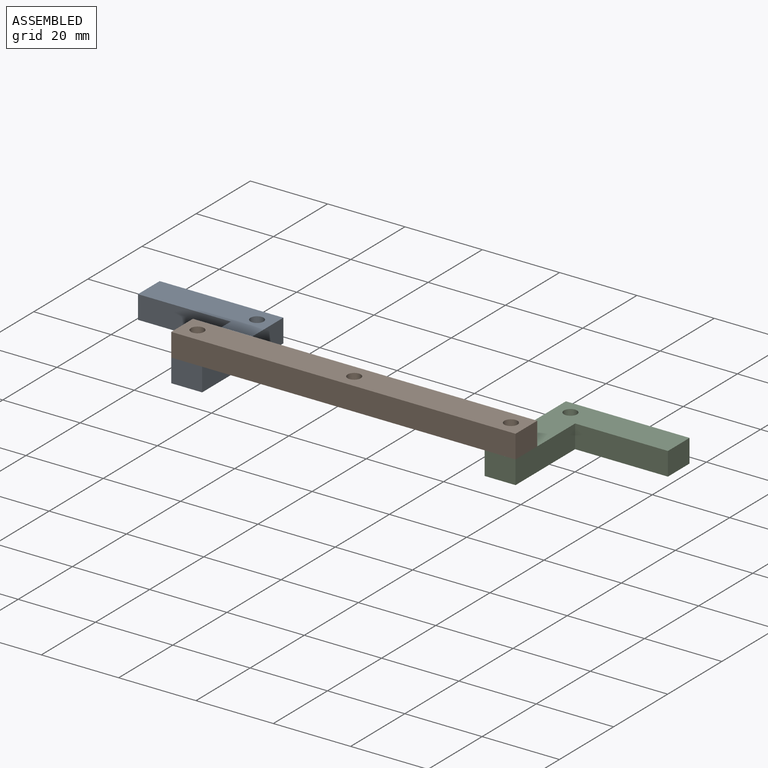
[diagram: assembled view]
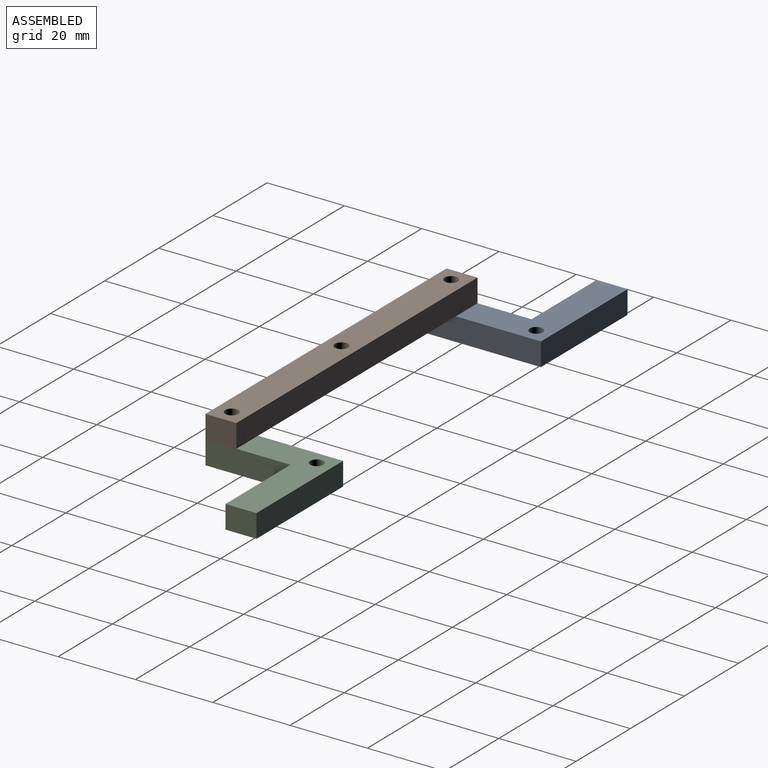
[diagram: assembled view, second angle]
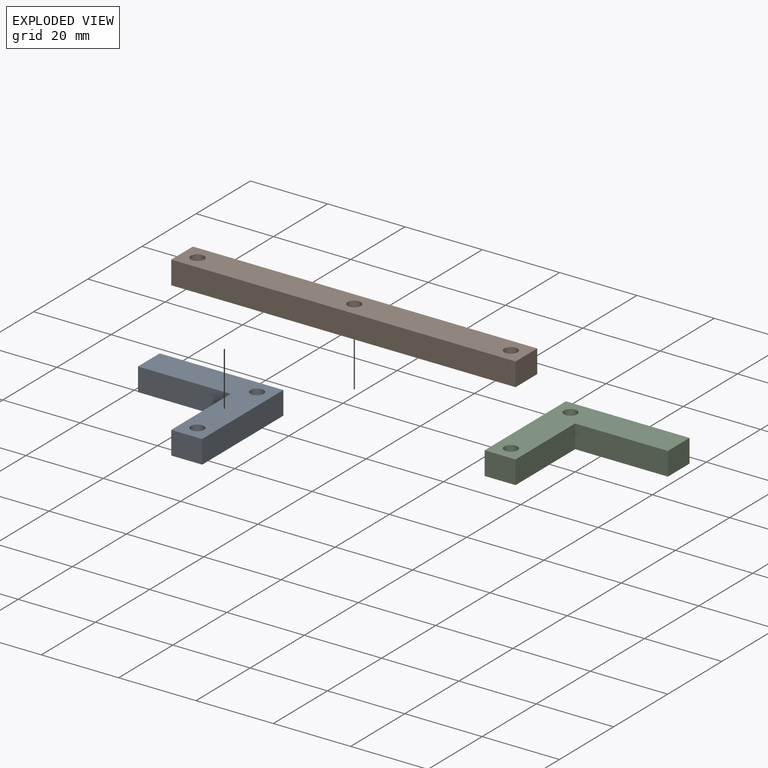
[diagram: exploded view]
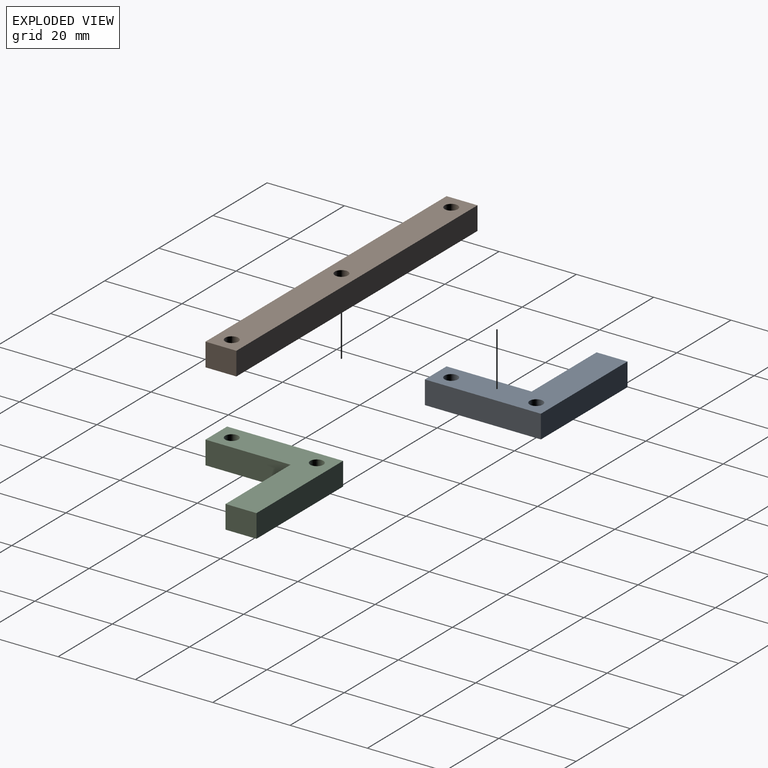
[diagram: exploded view, second angle]
ASSEMBLY  parts=3 mates=2
PART A: 10 faces, bbox 30x32x6 mm
  f0: plane 32x6mm, normal (-1,0,0), area 192mm2, adj f1,f5,f6,f7
  f1: plane 30x6mm, normal (0,-1,0), area 180mm2, adj f0,f2,f6,f7
  f2: plane 8x6mm, normal (1,0,0), area 48mm2, adj f1,f3,f6,f7
  f3: plane 22x6mm, normal (0,1,0), area 132mm2, adj f2,f4,f6,f7
  f4: plane 24x6mm, normal (1,0,0), area 144mm2, adj f3,f5,f6,f7
  f5: plane 8x6mm, normal (0,1,0), area 48mm2, adj f0,f4,f6,f7
  f6: plane 32x30mm, normal (0,0,1), area 413.8mm2, adj f0,f1,f2,f3,f4,f5,f8,f9
  f7: plane 32x30mm, normal (0,0,-1), area 413.8mm2, adj f0,f1,f2,f3,f4,f5,f8,f9
  f8: cylinder r=1.7mm len=6mm, axis (0,0,1), area 64.1mm2, adj f6,f7
  f9: cylinder r=1.7mm len=6mm, axis (0,0,1), area 64.1mm2, adj f6,f7
PART B: 9 faces, bbox 89.1x8x6 mm
  f0: plane 89.07x6mm, normal (0,1,0), area 534.4mm2, adj f1,f3,f4,f5
  f1: plane 8x6mm, normal (-1,0,0), area 48mm2, adj f0,f2,f4,f5
  f2: plane 89.07x6mm, normal (0,-1,0), area 534.4mm2, adj f1,f3,f4,f5
  f3: plane 8x6mm, normal (1,0,0), area 48mm2, adj f0,f2,f4,f5
  f4: plane 89.07x8mm, normal (0,0,1), area 685.3mm2, adj f0,f1,f2,f3,f6,f7,f8
  f5: plane 89.07x8mm, normal (0,0,-1), area 685.3mm2, adj f0,f1,f2,f3,f6,f7,f8
  f6: cylinder r=1.7mm len=6mm, axis (0,0,1), area 64.1mm2, adj f4,f5
  f7: cylinder r=1.7mm len=6mm, axis (0,0,1), area 64.1mm2, adj f4,f5
  f8: cylinder r=1.7mm len=6mm, axis (0,0,1), area 64.1mm2, adj f4,f5
PART C: same geometry as A
PLACE A rot(axis=(0.71,-0.71,0),180deg) t=(-48.18,8.94,0.52)mm
PLACE B t=(-7.64,-2.06,0.52)mm
PLACE C rot(axis=(0,0,-1),90deg) t=(32.89,8.94,-5.48)mm
MATE fastened C.f9 <-> B.f7  axis (0,0,1) through (32.89,-2.06,0.52)mm
MATE fastened A.f9 <-> B.f8  axis (0,0,1) through (-48.18,-2.06,0.52)mm
